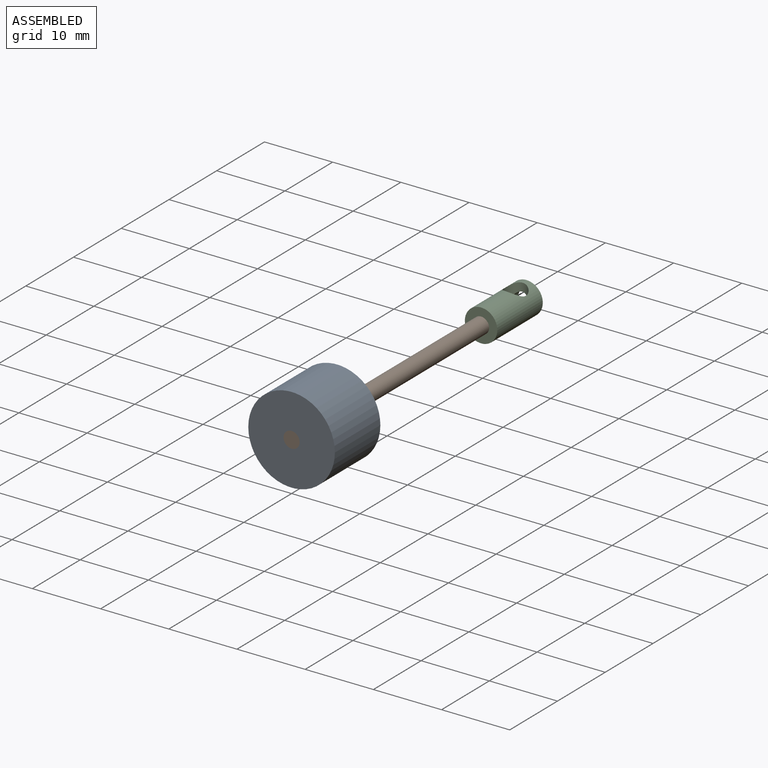
[diagram: assembled view]
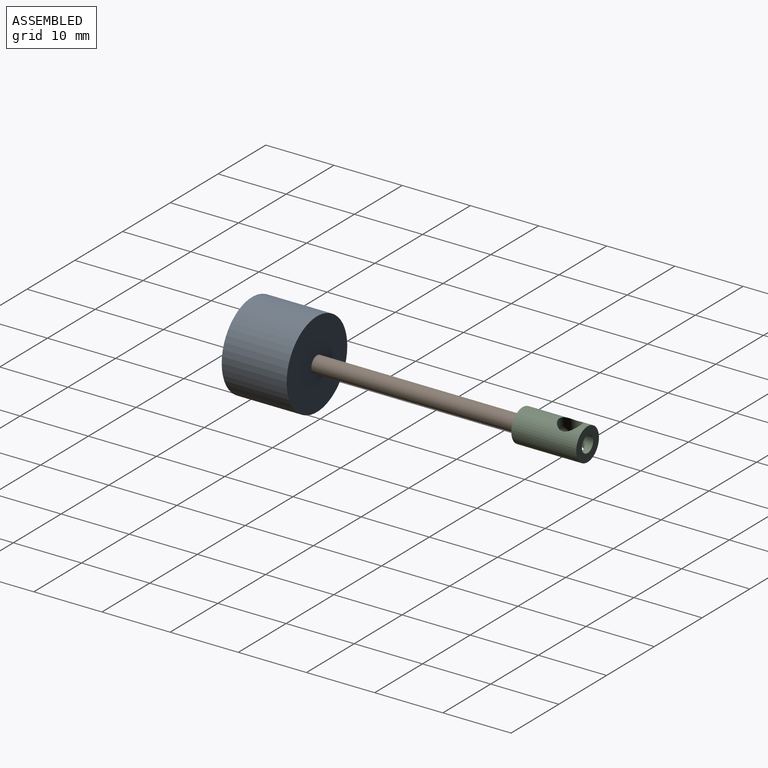
[diagram: assembled view, second angle]
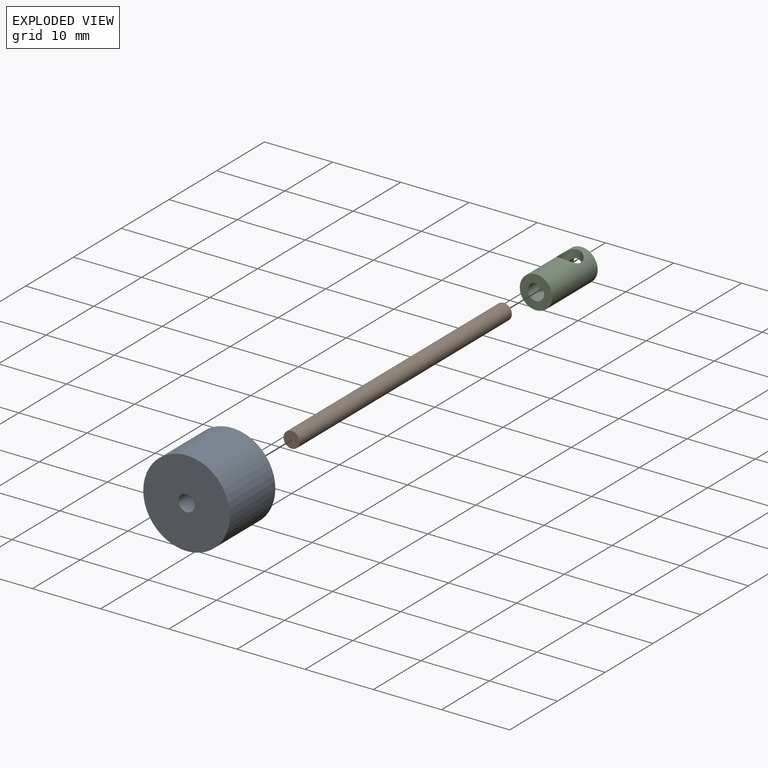
[diagram: exploded view]
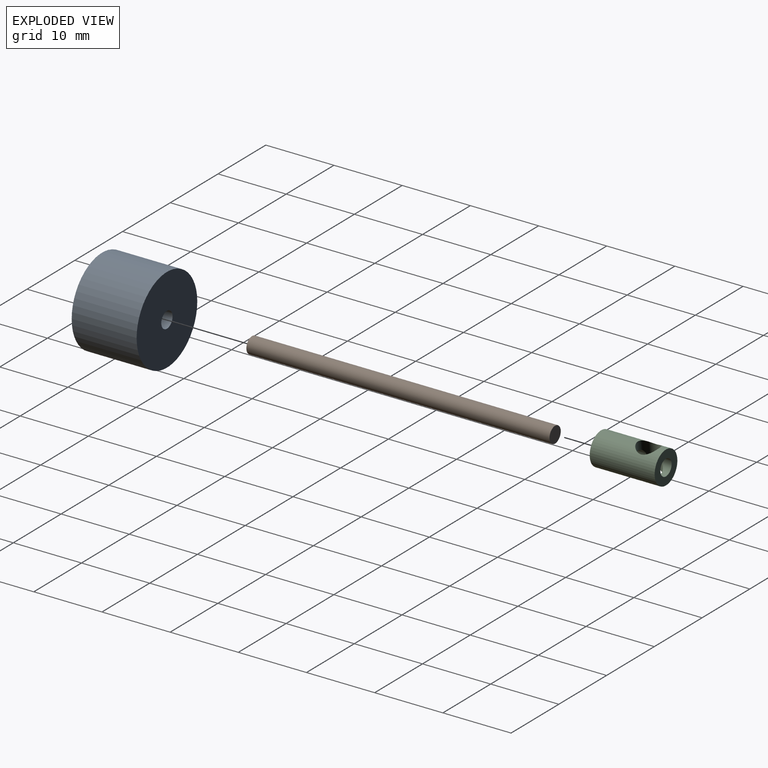
[diagram: exploded view, second angle]
ASSEMBLY  parts=3 mates=2
PART A: 4 faces, bbox 12.7x12.7x9.5 mm
  f0: cylinder r=1.18mm len=9.53mm, axis (0,0,1), area 70.7mm2, adj f2,f3
  f1: cylinder r=6.35mm len=12.7mm, axis (0,0,1), area 380mm2, adj f2,f3
  f2: plane 12.7x12.7mm, normal (0,0,-1), area 122.3mm2, adj f0,f1
  f3: plane 12.7x12.7mm, normal (0,0,1), area 122.3mm2, adj f0,f1
PART B: 3 faces, bbox 2.4x2.4x44.5 mm
  f0: cylinder r=1.18mm len=44.45mm, axis (0,0,1), area 329.9mm2, adj f1,f2
  f1: plane 2.36x2.36mm, normal (0,0,-1), area 4.4mm2, adj f0
  f2: plane 2.36x2.36mm, normal (0,0,1), area 4.4mm2, adj f0
PART C: 6 faces, bbox 4.8x4.8x9.5 mm
  f0: cylinder r=1.18mm len=2.36mm, axis (0,0,1), area 8.6mm2, adj f3,f5
  f1: cylinder r=1.18mm len=6.08mm, axis (0,0,1), area 42.3mm2, adj f4,f5
  f2: cylinder r=2.38mm len=9.53mm, axis (0,0,1), area 125.6mm2, adj f3,f4,f5
  f3: plane 4.76x4.76mm, normal (0,0,-1), area 13.4mm2, adj f0,f2
  f4: plane 4.76x4.76mm, normal (0,0,1), area 13.4mm2, adj f1,f2
  f5: cylinder r=1.59mm len=4.76mm, axis (-1,0,0), area 32mm2, adj f0,f1,f2
PLACE A rot(axis=(0,-0.71,0.71),180deg) t=(0.82,52.07,15.88)mm
PLACE B rot(axis=(1,0,0),90deg) t=(-0.82,42.55,-15.88)mm
PLACE C rot(axis=(0.61,-0.56,0.56),117deg) t=(15.73,37.78,-2.3)mm
MATE revolute C.f0 <-> B.f0  axis (0,-1,0) through (0,44.45,0)mm
MATE revolute B.f0 <-> A.f0  axis (0,-1,0) through (0,0,0)mm
